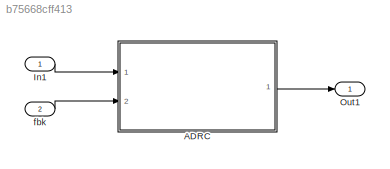
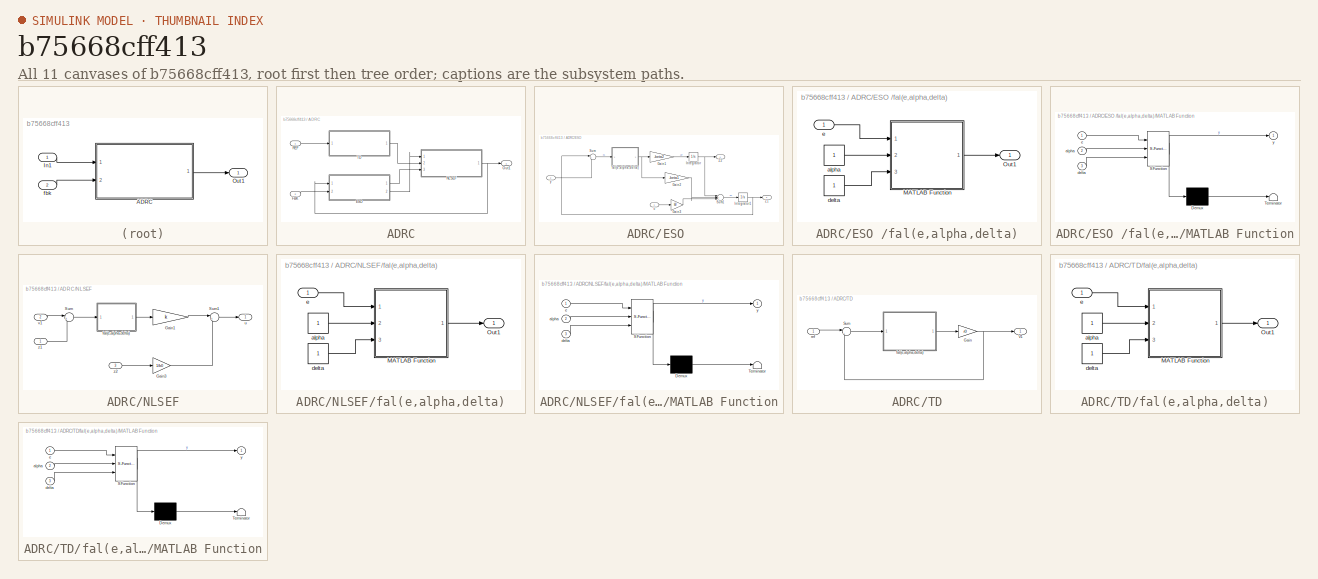
[diagram: thumbnail index - all 11 canvases of the model, root first then tree order]
MODEL slx_b75668cff413
KIND model
CONFIG AbsTol = auto
CONFIG EnableMultiTasking = off
CONFIG FixedStep = auto
CONFIG MaxStep = auto
CONFIG MinStep = auto
CONFIG RelTol = 1e-3
CONFIG SampleTimeConstraint = Unconstrained
CONFIG Solver = VariableStepAuto
CONFIG SolverName = VariableStepAuto
CONFIG StartTime = 0.0
CONFIG StopTime = 10.0
BLOCK [SubSystem] ADRC
  Ports = [2, 1]
  RequestExecContextInheritance = off
BLOCK [SubSystem] ADRC/ESO 
  Ports = [2, 2]
  RequestExecContextInheritance = off
BLOCK [Gain] ADRC/ESO /Gain1
  Gain = -beta2
  OutDataTypeStr = Inherit: Inherit via internal rule
  ParamDataTypeStr = Inherit: Inherit via internal rule
  SaturateOnIntegerOverflow = off
BLOCK [Gain] ADRC/ESO /Gain2
  Gain = -beta1
  OutDataTypeStr = Inherit: Inherit via internal rule
  ParamDataTypeStr = Inherit: Inherit via internal rule
  SaturateOnIntegerOverflow = off
BLOCK [Gain] ADRC/ESO /Gain3
  Gain = b0
  OutDataTypeStr = Inherit: Inherit via internal rule
  ParamDataTypeStr = Inherit: Inherit via internal rule
  SaturateOnIntegerOverflow = off
BLOCK [Integrator] ADRC/ESO /Integrator
  Ports = [1, 1]
BLOCK [Integrator] ADRC/ESO /Integrator1
  Ports = [1, 1]
BLOCK [Sum] ADRC/ESO /Sum
  IconShape = round
  InputSameDT = off
  Inputs = |+-
  OutDataTypeStr = Inherit: Inherit via internal rule
  Ports = [2, 1]
  SaturateOnIntegerOverflow = off
BLOCK [Sum] ADRC/ESO /Sum1
  IconShape = round
  InputSameDT = off
  Inputs = |+++
  OutDataTypeStr = Inherit: Inherit via internal rule
  Ports = [3, 1]
  SaturateOnIntegerOverflow = off
BLOCK [Outport] ADRC/ESO /Z1
  IconDisplay = Port number
  Port = 2
BLOCK [Outport] ADRC/ESO /Z2
  IconDisplay = Port number
BLOCK [SubSystem] ADRC/ESO /fal(e,alpha,delta)
  Ports = [1, 1]
  RequestExecContextInheritance = off
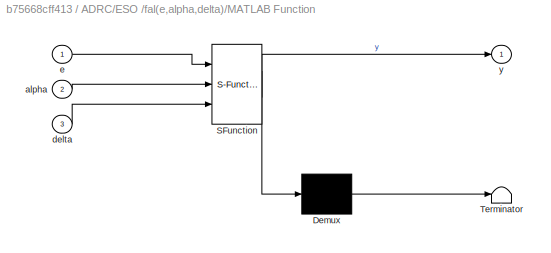
BLOCK [SubSystem] ADRC/ESO /fal(e,alpha,delta)/MATLAB Function
  ErrorFcn = Stateflow.Translate.translate
  PermitHierarchicalResolution = ExplicitOnly
  Ports = [3, 1]
  RequestExecContextInheritance = off
  SFBlockType = MATLAB Function
  TreatAsAtomicUnit = on
BLOCK [Demux] ADRC/ESO /fal(e,alpha,delta)/MATLAB Function/ Demux 
  Outputs = 1
  Ports = [1, 1]
BLOCK [S-Function] ADRC/ESO /fal(e,alpha,delta)/MATLAB Function/ SFunction 
  EnableBusSupport = off
  FunctionName = sf_sfun
  PortCounts = [3 2]
  Ports = [3, 2]
  SFcnIsStateOwnerBlock = off
  SFunctionDeploymentMode = off
  Tag = Stateflow S-Function ADRC_FOC 1
BLOCK [Terminator] ADRC/ESO /fal(e,alpha,delta)/MATLAB Function/ Terminator 
BLOCK [Inport] ADRC/ESO /fal(e,alpha,delta)/MATLAB Function/alpha
  IconDisplay = Port number
  Port = 2
BLOCK [Inport] ADRC/ESO /fal(e,alpha,delta)/MATLAB Function/delta
  IconDisplay = Port number
  Port = 3
BLOCK [Inport] ADRC/ESO /fal(e,alpha,delta)/MATLAB Function/e
  IconDisplay = Port number
BLOCK [Outport] ADRC/ESO /fal(e,alpha,delta)/MATLAB Function/y
  IconDisplay = Port number
BLOCK [Outport] ADRC/ESO /fal(e,alpha,delta)/Out1
  IconDisplay = Port number
BLOCK [Constant] ADRC/ESO /fal(e,alpha,delta)/alpha
BLOCK [Constant] ADRC/ESO /fal(e,alpha,delta)/delta
BLOCK [Inport] ADRC/ESO /fal(e,alpha,delta)/e
  IconDisplay = Port number
BLOCK [Inport] ADRC/ESO /u
  IconDisplay = Port number
BLOCK [Inport] ADRC/ESO /y
  IconDisplay = Port number
  Port = 2
BLOCK [Inport] ADRC/FBK
  IconDisplay = Port number
  Port = 2
BLOCK [SubSystem] ADRC/NLSEF
  Ports = [3, 1]
  RequestExecContextInheritance = off
BLOCK [Gain] ADRC/NLSEF/Gain1
  Gain = k
  OutDataTypeStr = Inherit: Inherit via internal rule
  ParamDataTypeStr = Inherit: Inherit via internal rule
  SaturateOnIntegerOverflow = off
BLOCK [Gain] ADRC/NLSEF/Gain3
  Gain = 1/b0
  OutDataTypeStr = Inherit: Inherit via internal rule
  ParamDataTypeStr = Inherit: Inherit via internal rule
  SaturateOnIntegerOverflow = off
BLOCK [Sum] ADRC/NLSEF/Sum
  IconShape = round
  InputSameDT = off
  Inputs = |+-
  OutDataTypeStr = Inherit: Inherit via internal rule
  Ports = [2, 1]
  SaturateOnIntegerOverflow = off
BLOCK [Sum] ADRC/NLSEF/Sum1
  IconShape = round
  InputSameDT = off
  Inputs = |+-
  OutDataTypeStr = Inherit: Inherit via internal rule
  Ports = [2, 1]
  SaturateOnIntegerOverflow = off
BLOCK [SubSystem] ADRC/NLSEF/fal(e,alpha,delta)
  Ports = [1, 1]
  RequestExecContextInheritance = off
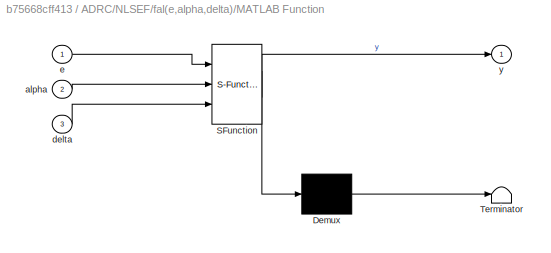
BLOCK [SubSystem] ADRC/NLSEF/fal(e,alpha,delta)/MATLAB Function
  ErrorFcn = Stateflow.Translate.translate
  PermitHierarchicalResolution = ExplicitOnly
  Ports = [3, 1]
  RequestExecContextInheritance = off
  SFBlockType = MATLAB Function
  TreatAsAtomicUnit = on
BLOCK [Demux] ADRC/NLSEF/fal(e,alpha,delta)/MATLAB Function/ Demux 
  Outputs = 1
  Ports = [1, 1]
BLOCK [S-Function] ADRC/NLSEF/fal(e,alpha,delta)/MATLAB Function/ SFunction 
  EnableBusSupport = off
  FunctionName = sf_sfun
  PortCounts = [3 2]
  Ports = [3, 2]
  SFcnIsStateOwnerBlock = off
  SFunctionDeploymentMode = off
  Tag = Stateflow S-Function ADRC_FOC 3
BLOCK [Terminator] ADRC/NLSEF/fal(e,alpha,delta)/MATLAB Function/ Terminator 
BLOCK [Inport] ADRC/NLSEF/fal(e,alpha,delta)/MATLAB Function/alpha
  IconDisplay = Port number
  Port = 2
BLOCK [Inport] ADRC/NLSEF/fal(e,alpha,delta)/MATLAB Function/delta
  IconDisplay = Port number
  Port = 3
BLOCK [Inport] ADRC/NLSEF/fal(e,alpha,delta)/MATLAB Function/e
  IconDisplay = Port number
BLOCK [Outport] ADRC/NLSEF/fal(e,alpha,delta)/MATLAB Function/y
  IconDisplay = Port number
BLOCK [Outport] ADRC/NLSEF/fal(e,alpha,delta)/Out1
  IconDisplay = Port number
BLOCK [Constant] ADRC/NLSEF/fal(e,alpha,delta)/alpha
BLOCK [Constant] ADRC/NLSEF/fal(e,alpha,delta)/delta
BLOCK [Inport] ADRC/NLSEF/fal(e,alpha,delta)/e
  IconDisplay = Port number
BLOCK [Outport] ADRC/NLSEF/u
  IconDisplay = Port number
BLOCK [Inport] ADRC/NLSEF/v1
  IconDisplay = Port number
  Port = 2
BLOCK [Inport] ADRC/NLSEF/z1
  IconDisplay = Port number
BLOCK [Inport] ADRC/NLSEF/z2
  IconDisplay = Port number
  Port = 3
BLOCK [Outport] ADRC/Out1
  IconDisplay = Port number
BLOCK [Inport] ADRC/REF
  IconDisplay = Port number
BLOCK [SubSystem] ADRC/TD
  Ports = [1, 1]
  RequestExecContextInheritance = off
BLOCK [Gain] ADRC/TD/Gain
  Gain = r0
  OutDataTypeStr = Inherit: Inherit via internal rule
  ParamDataTypeStr = Inherit: Inherit via internal rule
  SaturateOnIntegerOverflow = off
BLOCK [Sum] ADRC/TD/Sum
  IconShape = round
  InputSameDT = off
  Inputs = |+-
  OutDataTypeStr = Inherit: Inherit via internal rule
  Ports = [2, 1]
  SaturateOnIntegerOverflow = off
BLOCK [Outport] ADRC/TD/V1
  IconDisplay = Port number
BLOCK [SubSystem] ADRC/TD/fal(e,alpha,delta)
  Ports = [1, 1]
  RequestExecContextInheritance = off
BLOCK [SubSystem] ADRC/TD/fal(e,alpha,delta)/MATLAB Function
  ErrorFcn = Stateflow.Translate.translate
  PermitHierarchicalResolution = ExplicitOnly
  Ports = [3, 1]
  RequestExecContextInheritance = off
  SFBlockType = MATLAB Function
  TreatAsAtomicUnit = on
BLOCK [Demux] ADRC/TD/fal(e,alpha,delta)/MATLAB Function/ Demux 
  Outputs = 1
  Ports = [1, 1]
BLOCK [S-Function] ADRC/TD/fal(e,alpha,delta)/MATLAB Function/ SFunction 
  EnableBusSupport = off
  FunctionName = sf_sfun
  PortCounts = [3 2]
  Ports = [3, 2]
  SFcnIsStateOwnerBlock = off
  SFunctionDeploymentMode = off
  Tag = Stateflow S-Function ADRC_FOC 2
BLOCK [Terminator] ADRC/TD/fal(e,alpha,delta)/MATLAB Function/ Terminator 
BLOCK [Inport] ADRC/TD/fal(e,alpha,delta)/MATLAB Function/alpha
  IconDisplay = Port number
  Port = 2
BLOCK [Inport] ADRC/TD/fal(e,alpha,delta)/MATLAB Function/delta
  IconDisplay = Port number
  Port = 3
BLOCK [Inport] ADRC/TD/fal(e,alpha,delta)/MATLAB Function/e
  IconDisplay = Port number
BLOCK [Outport] ADRC/TD/fal(e,alpha,delta)/MATLAB Function/y
  IconDisplay = Port number
BLOCK [Outport] ADRC/TD/fal(e,alpha,delta)/Out1
  IconDisplay = Port number
BLOCK [Constant] ADRC/TD/fal(e,alpha,delta)/alpha
BLOCK [Constant] ADRC/TD/fal(e,alpha,delta)/delta
BLOCK [Inport] ADRC/TD/fal(e,alpha,delta)/e
  IconDisplay = Port number
BLOCK [Inport] ADRC/TD/ref
  IconDisplay = Port number
BLOCK [Inport] In1
  IconDisplay = Port number
BLOCK [Outport] Out1
  IconDisplay = Port number
BLOCK [Inport] fbk
  IconDisplay = Port number
  Port = 2
LINE ADRC/ESO /Gain1:1 -> ADRC/ESO /Integrator:1
LINE ADRC/ESO /Gain2:1 -> ADRC/ESO /Sum1:2
LINE ADRC/ESO /Gain3:1 -> ADRC/ESO /Sum1:3
NET ADRC/ESO /Integrator1:1 -> ADRC/ESO /Sum:1, ADRC/ESO /Z1:1
NET ADRC/ESO /Integrator:1 -> ADRC/ESO /Sum1:1, ADRC/ESO /Z2:1
LINE ADRC/ESO /Sum1:1 -> ADRC/ESO /Integrator1:1
LINE ADRC/ESO /Sum:1 -> ADRC/ESO /fal(e,alpha,delta):1
LINE ADRC/ESO /fal(e,alpha,delta)/MATLAB Function:1 -> ADRC/ESO /fal(e,alpha,delta)/Out1:1
LINE ADRC/ESO /fal(e,alpha,delta)/alpha:1 -> ADRC/ESO /fal(e,alpha,delta)/MATLAB Function:2
LINE ADRC/ESO /fal(e,alpha,delta)/delta:1 -> ADRC/ESO /fal(e,alpha,delta)/MATLAB Function:3
LINE ADRC/ESO /fal(e,alpha,delta)/e:1 -> ADRC/ESO /fal(e,alpha,delta)/MATLAB Function:1
NET ADRC/ESO /fal(e,alpha,delta):1 -> ADRC/ESO /Gain1:1, ADRC/ESO /Gain2:1
LINE ADRC/ESO /u:1 -> ADRC/ESO /Gain3:1
LINE ADRC/ESO /y:1 -> ADRC/ESO /Sum:2
LINE ADRC/ESO :1 -> ADRC/NLSEF:3
LINE ADRC/ESO :2 -> ADRC/NLSEF:1
LINE ADRC/FBK:1 -> ADRC/ESO :2
LINE ADRC/NLSEF/Gain1:1 -> ADRC/NLSEF/Sum1:1
LINE ADRC/NLSEF/Gain3:1 -> ADRC/NLSEF/Sum1:2
LINE ADRC/NLSEF/Sum1:1 -> ADRC/NLSEF/u:1
LINE ADRC/NLSEF/Sum:1 -> ADRC/NLSEF/fal(e,alpha,delta):1
LINE ADRC/NLSEF/fal(e,alpha,delta)/MATLAB Function:1 -> ADRC/NLSEF/fal(e,alpha,delta)/Out1:1
LINE ADRC/NLSEF/fal(e,alpha,delta)/alpha:1 -> ADRC/NLSEF/fal(e,alpha,delta)/MATLAB Function:2
LINE ADRC/NLSEF/fal(e,alpha,delta)/delta:1 -> ADRC/NLSEF/fal(e,alpha,delta)/MATLAB Function:3
LINE ADRC/NLSEF/fal(e,alpha,delta)/e:1 -> ADRC/NLSEF/fal(e,alpha,delta)/MATLAB Function:1
LINE ADRC/NLSEF/fal(e,alpha,delta):1 -> ADRC/NLSEF/Gain1:1
LINE ADRC/NLSEF/v1:1 -> ADRC/NLSEF/Sum:1
LINE ADRC/NLSEF/z1:1 -> ADRC/NLSEF/Sum:2
LINE ADRC/NLSEF/z2:1 -> ADRC/NLSEF/Gain3:1
NET ADRC/NLSEF:1 -> ADRC/ESO :1, ADRC/Out1:1
LINE ADRC/REF:1 -> ADRC/TD:1
NET ADRC/TD/Gain:1 -> ADRC/TD/Sum:2, ADRC/TD/V1:1
LINE ADRC/TD/Sum:1 -> ADRC/TD/fal(e,alpha,delta):1
LINE ADRC/TD/fal(e,alpha,delta)/MATLAB Function:1 -> ADRC/TD/fal(e,alpha,delta)/Out1:1
LINE ADRC/TD/fal(e,alpha,delta)/alpha:1 -> ADRC/TD/fal(e,alpha,delta)/MATLAB Function:2
LINE ADRC/TD/fal(e,alpha,delta)/delta:1 -> ADRC/TD/fal(e,alpha,delta)/MATLAB Function:3
LINE ADRC/TD/fal(e,alpha,delta)/e:1 -> ADRC/TD/fal(e,alpha,delta)/MATLAB Function:1
LINE ADRC/TD/fal(e,alpha,delta):1 -> ADRC/TD/Gain:1
LINE ADRC/TD/ref:1 -> ADRC/TD/Sum:1
LINE ADRC/TD:1 -> ADRC/NLSEF:2
LINE ADRC:1 -> Out1:1
LINE In1:1 -> ADRC:1
LINE fbk:1 -> ADRC:2
note: NET lines group one-source signal fan-out (src -> all destinations, sorted); 1:1 wires keep LINE
CHART ADRC/ESO
/fal(e,alpha,delta)/MATLAB Function states=1 transitions=1
  STATE_LABEL 'eML_blk_kernel()'
  STATE_LABEL 'SCRIPT:\nfunction y = fcn(e,alpha,delta)\n\nif abs(e)>delta\n    y = (abs(e))^alpha * sign(e);\nelse\n    y = e/(delta^(1 - alpha));\nend\n\nend\n'
CHART ADRC/TD/fal(e,alpha,delta)/MATLAB Function states=1 transitions=1
  STATE_LABEL 'eML_blk_kernel()'
  STATE_LABEL 'SCRIPT:\nfunction y = fcn(e,alpha,delta)\n\nif abs(e)>delta\n    y = (abs(e))^alpha * sign(e);\nelse\n    y = e/(delta^(1 - alpha));\nend\n\nend\n'
CHART ADRC/NLSEF/fal(e,alpha,delta)/MATLAB Function states=1 transitions=1
  STATE_LABEL 'eML_blk_kernel()'
  STATE_LABEL 'SCRIPT:\nfunction y = fcn(e,alpha,delta)\n\nif abs(e)>delta\n    y = (abs(e))^alpha * sign(e);\nelse\n    y = e/(delta^(1 - alpha));\nend\n\nend\n'
